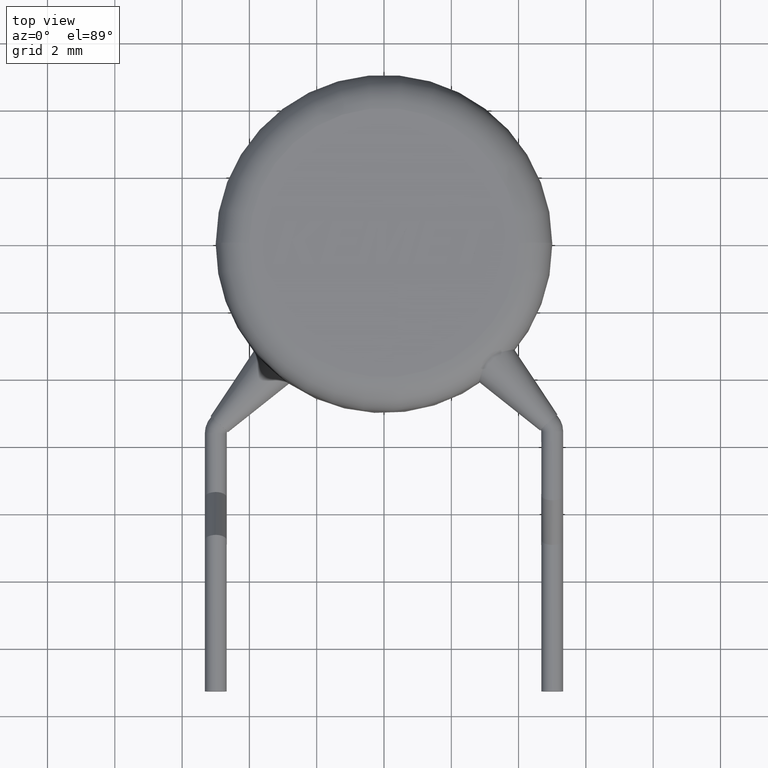
[diagram: clean part render]
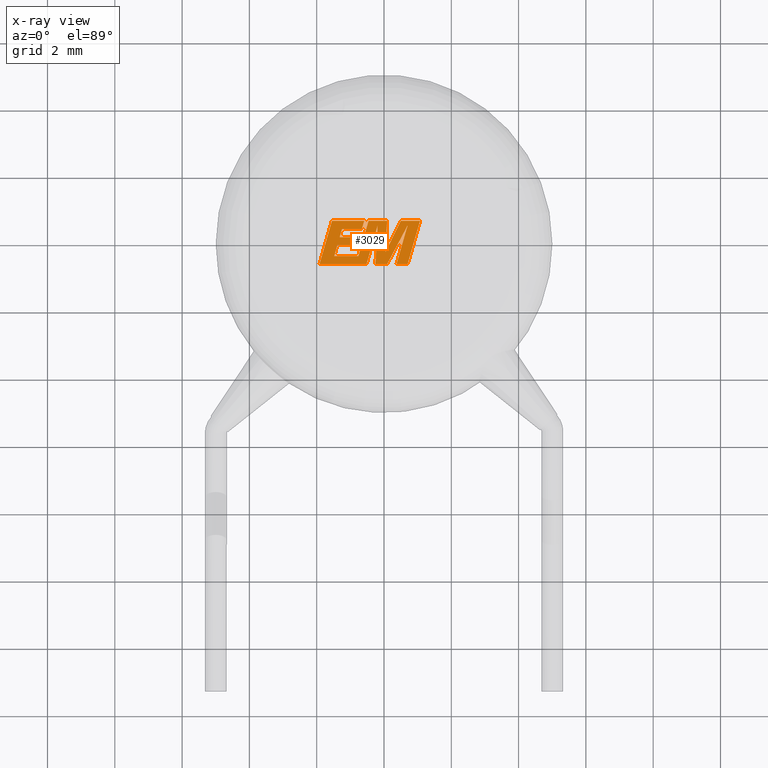
[diagram: x-ray — body ghosted, one internal face saturated and labeled with its STEP entity id]
A machine part, top view, then the same camera in x-ray: the body is ghosted and one INTERNAL B-rep face — a face not visible from any outside direction — is saturated and labeled: STEP entity #3029.
In plain terms, the highlighted planar face has unit normal (0, 0, -1).
Its self-contained STEP definition (entity closure, byte-faithful):
#59 = DIRECTION ( 'NONE',  ( 1.000000000000000000, 3.356850871075833000E-016, 0.0000000000000000000 ) ) ;
#73 = CARTESIAN_POINT ( 'NONE',  ( -1.918301685120686200, -0.6500008832987458400, 4.997772128840647800 ) ) ;
#106 = VERTEX_POINT ( 'NONE', #1135 ) ;
#116 = CARTESIAN_POINT ( 'NONE',  ( -1.545337455831742300, 0.6460950318606386600, 4.997772128840647800 ) ) ;
#141 = EDGE_CURVE ( 'NONE', #1996, #106, #1573, .T. ) ;
#193 = VECTOR ( 'NONE', #2542, 1000.000000000000000 ) ;
#200 = ORIENTED_EDGE ( 'NONE', *, *, #1139, .F. ) ;
#202 = LINE ( 'NONE', #383, #3852 ) ;
#203 = LINE ( 'NONE', #3649, #406 ) ;
#221 = VERTEX_POINT ( 'NONE', #2167 ) ;
#277 = LINE ( 'NONE', #1565, #3358 ) ;
#318 = VECTOR ( 'NONE', #1722, 1000.000000000000100 ) ;
#355 = VERTEX_POINT ( 'NONE', #3950 ) ;
#363 = DIRECTION ( 'NONE',  ( -0.2760118818968558300, -0.9611542233438690200, 0.0000000000000000000 ) ) ;
#383 = CARTESIAN_POINT ( 'NONE',  ( 0.3692732009501374400, -0.6500008832987453900, 4.997772128840647800 ) ) ;
#406 = VECTOR ( 'NONE', #3637, 1000.000000000000000 ) ;
#428 = VERTEX_POINT ( 'NONE', #1945 ) ;
#450 = EDGE_CURVE ( 'NONE', #1593, #784, #976, .T. ) ;
#452 = ORIENTED_EDGE ( 'NONE', *, *, #3002, .F. ) ;
#464 = VECTOR ( 'NONE', #2916, 1000.000000000000100 ) ;
#491 = LINE ( 'NONE', #2409, #2614 ) ;
#502 = VECTOR ( 'NONE', #3738, 1000.000000000000200 ) ;
#503 = CARTESIAN_POINT ( 'NONE',  ( -0.6578946926326947300, 0.3993898294328880300, 4.997772128840647800 ) ) ;
#517 = EDGE_CURVE ( 'NONE', #1735, #2881, #3745, .T. ) ;
#530 = CARTESIAN_POINT ( 'NONE',  ( -1.318557518234737800, 0.1583161941415666700, 4.997772128840647800 ) ) ;
#533 = CARTESIAN_POINT ( 'NONE',  ( -1.386916624980912400, -0.08128747995920908300, 4.997772128840647800 ) ) ;
#535 = ORIENTED_EDGE ( 'NONE', *, *, #2489, .F. ) ;
#655 = LINE ( 'NONE', #1034, #3118 ) ;
#660 = VERTEX_POINT ( 'NONE', #1193 ) ;
#672 = EDGE_CURVE ( 'NONE', #221, #355, #2588, .T. ) ;
#734 = CARTESIAN_POINT ( 'NONE',  ( 0.6986312078143923600, -0.6500008832987453900, 4.997772128840647800 ) ) ;
#742 = DIRECTION ( 'NONE',  ( 1.000000000000000000, 0.0000000000000000000, 0.0000000000000000000 ) ) ;
#784 = VERTEX_POINT ( 'NONE', #4128 ) ;
#814 = CARTESIAN_POINT ( 'NONE',  ( -1.478700528827219700, -0.4034178492251833700, 4.997772128840647800 ) ) ;
#816 = EDGE_CURVE ( 'NONE', #660, #3030, #2740, .T. ) ;
#910 = DIRECTION ( 'NONE',  ( 1.000000000000000000, 0.0000000000000000000, 0.0000000000000000000 ) ) ;
#922 = LINE ( 'NONE', #3548, #1116 ) ;
#955 = DIRECTION ( 'NONE',  ( 0.0000000000000000000, 0.0000000000000000000, -1.000000000000000000 ) ) ;
#976 = LINE ( 'NONE', #1007, #2970 ) ;
#996 = LINE ( 'NONE', #2042, #3212 ) ;
#1007 = CARTESIAN_POINT ( 'NONE',  ( -0.5878252288976687500, 0.6460950318606388800, 4.997772128840647800 ) ) ;
#1034 = CARTESIAN_POINT ( 'NONE',  ( -1.248409236205454000, 0.3993898294328880300, 4.997772128840647800 ) ) ;
#1065 = CARTESIAN_POINT ( 'NONE',  ( -0.2553736050183372200, -0.6500008832987456100, 4.997772128840647800 ) ) ;
#1116 = VECTOR ( 'NONE', #1186, 1000.000000000000000 ) ;
#1135 = CARTESIAN_POINT ( 'NONE',  ( -0.1906953126225210400, 0.5038792423380131800, 4.997772128840647800 ) ) ;
#1139 = EDGE_CURVE ( 'NONE', #3916, #2734, #3683, .T. ) ;
#1186 = DIRECTION ( 'NONE',  ( 0.05375259206908322700, 0.9985542843760947300, 0.0000000000000000000 ) ) ;
#1193 = CARTESIAN_POINT ( 'NONE',  ( -0.7602166024452062800, -0.4034178492251833700, 4.997772128840647800 ) ) ;
#1222 = ORIENTED_EDGE ( 'NONE', *, *, #1696, .F. ) ;
#1301 = EDGE_CURVE ( 'NONE', #1378, #2292, #1479, .T. ) ;
#1352 = EDGE_CURVE ( 'NONE', #2881, #221, #922, .T. ) ;
#1367 = LINE ( 'NONE', #503, #3072 ) ;
#1378 = VERTEX_POINT ( 'NONE', #3051 ) ;
#1400 = EDGE_CURVE ( 'NONE', #784, #4099, #3577, .T. ) ;
#1409 = DIRECTION ( 'NONE',  ( -1.000000000000000000, 0.0000000000000000000, 0.0000000000000000000 ) ) ;
#1429 = DIRECTION ( 'NONE',  ( 0.2732148821745905600, 0.9619530280415591300, 0.0000000000000000000 ) ) ;
#1431 = CARTESIAN_POINT ( 'NONE',  ( -0.5220080131885634900, -0.6500008832987455000, 4.997772128840647800 ) ) ;
#1437 = VECTOR ( 'NONE', #3856, 1000.000000000000000 ) ;
#1445 = CARTESIAN_POINT ( 'NONE',  ( 0.09015397494482271800, -0.6500008832987455000, 4.997772128840647800 ) ) ;
#1464 = DIRECTION ( 'NONE',  ( -1.000000000000000000, 0.0000000000000000000, 0.0000000000000000000 ) ) ;
#1479 = LINE ( 'NONE', #2186, #193 ) ;
#1565 = CARTESIAN_POINT ( 'NONE',  ( 1.071268340140695300, 0.6460950318606393200, 4.997772128840647800 ) ) ;
#1573 = LINE ( 'NONE', #1431, #502 ) ;
#1593 = VERTEX_POINT ( 'NONE', #1784 ) ;
#1630 = VECTOR ( 'NONE', #2305, 1000.000000000000200 ) ;
#1632 = ORIENTED_EDGE ( 'NONE', *, *, #816, .F. ) ;
#1641 = LINE ( 'NONE', #2839, #1437 ) ;
#1672 = EDGE_CURVE ( 'NONE', #4150, #1593, #1367, .T. ) ;
#1696 = EDGE_CURVE ( 'NONE', #4099, #1996, #1721, .T. ) ;
#1721 = LINE ( 'NONE', #2681, #3688 ) ;
#1722 = DIRECTION ( 'NONE',  ( 0.2763139702539121300, 0.9610674221107071700, 0.0000000000000000000 ) ) ;
#1727 = EDGE_CURVE ( 'NONE', #2935, #3916, #203, .T. ) ;
#1735 = VERTEX_POINT ( 'NONE', #2991 ) ;
#1747 = ORIENTED_EDGE ( 'NONE', *, *, #2595, .F. ) ;
#1769 = CARTESIAN_POINT ( 'NONE',  ( -0.05394957496046050300, -0.1657095736357620500, 4.997772128840647800 ) ) ;
#1771 = VECTOR ( 'NONE', #1464, 1000.000000000000000 ) ;
#1784 = CARTESIAN_POINT ( 'NONE',  ( -0.5878252288976687500, 0.6460950318606388800, 4.997772128840647800 ) ) ;
#1786 = ORIENTED_EDGE ( 'NONE', *, *, #3146, .F. ) ;
#1819 = EDGE_CURVE ( 'NONE', #2288, #4150, #655, .T. ) ;
#1838 = ORIENTED_EDGE ( 'NONE', *, *, #1727, .F. ) ;
#1865 = CARTESIAN_POINT ( 'NONE',  ( 0.09341393363798819500, 0.6460950318606388800, 4.997772128840647800 ) ) ;
#1875 = CARTESIAN_POINT ( 'NONE',  ( -0.5220080131885634900, -0.6500008832987455000, 4.997772128840647800 ) ) ;
#1879 = CARTESIAN_POINT ( 'NONE',  ( 0.7022253220395017200, 0.5094359320914363400, 4.997772128840647800 ) ) ;
#1883 = ORIENTED_EDGE ( 'NONE', *, *, #1400, .F. ) ;
#1945 = CARTESIAN_POINT ( 'NONE',  ( 0.6986312078143923600, -0.6500008832987453900, 4.997772128840647800 ) ) ;
#1962 = VECTOR ( 'NONE', #3693, 1000.000000000000000 ) ;
#1985 = LINE ( 'NONE', #1879, #3262 ) ;
#1996 = VERTEX_POINT ( 'NONE', #1875 ) ;
#2042 = CARTESIAN_POINT ( 'NONE',  ( -0.8306959213072585600, -0.08128747995920908300, 4.997772128840647800 ) ) ;
#2094 = VECTOR ( 'NONE', #2834, 1000.000000000000100 ) ;
#2126 = CARTESIAN_POINT ( 'NONE',  ( -1.478700528827219700, -0.4034178492251833700, 4.997772128840647800 ) ) ;
#2139 = ORIENTED_EDGE ( 'NONE', *, *, #1301, .F. ) ;
#2166 = CARTESIAN_POINT ( 'NONE',  ( 1.071268340140695300, 0.6460950318606393200, 4.997772128840647800 ) ) ;
#2167 = CARTESIAN_POINT ( 'NONE',  ( 0.09341393363798819500, 0.6460950318606388800, 4.997772128840647800 ) ) ;
#2186 = CARTESIAN_POINT ( 'NONE',  ( -0.7622579962667237500, 0.1583161941415666700, 4.997772128840647800 ) ) ;
#2226 = ORIENTED_EDGE ( 'NONE', *, *, #2568, .F. ) ;
#2239 = DIRECTION ( 'NONE',  ( -1.000000000000000000, -1.617586338826207700E-016, 0.0000000000000000000 ) ) ;
#2283 = CARTESIAN_POINT ( 'NONE',  ( 0.3692732009501374400, -0.6500008832987453900, 4.997772128840647800 ) ) ;
#2288 = VERTEX_POINT ( 'NONE', #3678 ) ;
#2292 = VERTEX_POINT ( 'NONE', #530 ) ;
#2305 = DIRECTION ( 'NONE',  ( 0.4668459304955211400, 0.8843386665637611400, 0.0000000000000000000 ) ) ;
#2317 = DIRECTION ( 'NONE',  ( 0.2793947940878283600, 0.9601763114327598300, 0.0000000000000000000 ) ) ;
#2335 = VECTOR ( 'NONE', #3808, 1000.000000000000100 ) ;
#2338 = CARTESIAN_POINT ( 'NONE',  ( 0.04356979092839204100, -0.2798525427187182900, 4.997772128840647800 ) ) ;
#2360 = EDGE_CURVE ( 'NONE', #3514, #1378, #996, .T. ) ;
#2409 = CARTESIAN_POINT ( 'NONE',  ( -0.4585474624012029800, 0.6460950318606388800, 4.997772128840647800 ) ) ;
#2416 = DIRECTION ( 'NONE',  ( 0.2746459304916898400, 0.9615454294334480100, 0.0000000000000000000 ) ) ;
#2453 = DIRECTION ( 'NONE',  ( -0.2762517575166156800, -0.9610853065513909100, 0.0000000000000000000 ) ) ;
#2489 = EDGE_CURVE ( 'NONE', #3209, #1735, #277, .T. ) ;
#2542 = DIRECTION ( 'NONE',  ( -1.000000000000000000, 0.0000000000000000000, 0.0000000000000000000 ) ) ;
#2568 = EDGE_CURVE ( 'NONE', #106, #2935, #4167, .T. ) ;
#2588 = LINE ( 'NONE', #1865, #1962 ) ;
#2595 = EDGE_CURVE ( 'NONE', #2734, #2705, #1985, .T. ) ;
#2612 = EDGE_CURVE ( 'NONE', #2292, #2288, #3615, .T. ) ;
#2614 = VECTOR ( 'NONE', #2453, 1000.000000000000100 ) ;
#2641 = ORIENTED_EDGE ( 'NONE', *, *, #141, .F. ) ;
#2681 = CARTESIAN_POINT ( 'NONE',  ( -0.7527091609358903500, -0.6500008832987456100, 4.997772128840647800 ) ) ;
#2697 = ORIENTED_EDGE ( 'NONE', *, *, #450, .F. ) ;
#2705 = VERTEX_POINT ( 'NONE', #2283 ) ;
#2717 = VECTOR ( 'NONE', #2317, 999.9999999999998900 ) ;
#2734 = VERTEX_POINT ( 'NONE', #2983 ) ;
#2740 = LINE ( 'NONE', #3085, #1771 ) ;
#2791 = DIRECTION ( 'NONE',  ( -1.000000000000000000, 0.0000000000000000000, 0.0000000000000000000 ) ) ;
#2825 = ORIENTED_EDGE ( 'NONE', *, *, #3282, .F. ) ;
#2834 = DIRECTION ( 'NONE',  ( -0.05596501978068731100, -0.9984327301130243600, 0.0000000000000000000 ) ) ;
#2839 = CARTESIAN_POINT ( 'NONE',  ( -1.386916624980912400, -0.08128747995920908300, 4.997772128840647800 ) ) ;
#2877 = CARTESIAN_POINT ( 'NONE',  ( -0.1906953126225210400, 0.5038792423380131800, 4.997772128840647800 ) ) ;
#2881 = VERTEX_POINT ( 'NONE', #2338 ) ;
#2916 = DIRECTION ( 'NONE',  ( -0.4443210308329068000, -0.8958676361827026000, 0.0000000000000000000 ) ) ;
#2928 = EDGE_CURVE ( 'NONE', #428, #3209, #3149, .T. ) ;
#2935 = VERTEX_POINT ( 'NONE', #1065 ) ;
#2970 = VECTOR ( 'NONE', #2239, 1000.000000000000000 ) ;
#2983 = CARTESIAN_POINT ( 'NONE',  ( 0.7022253220395017200, 0.5094359320914363400, 4.997772128840647800 ) ) ;
#2991 = CARTESIAN_POINT ( 'NONE',  ( 0.5028094868586791000, 0.6460950318606393200, 4.997772128840647800 ) ) ;
#3002 = EDGE_CURVE ( 'NONE', #3030, #3142, #3034, .T. ) ;
#3029 = ADVANCED_FACE ( 'NONE', ( #3648 ), #3087, .T. ) ;
#3030 = VERTEX_POINT ( 'NONE', #2126 ) ;
#3034 = LINE ( 'NONE', #814, #2335 ) ;
#3043 = ORIENTED_EDGE ( 'NONE', *, *, #1672, .F. ) ;
#3051 = CARTESIAN_POINT ( 'NONE',  ( -0.7622579962667237500, 0.1583161941415666700, 4.997772128840647800 ) ) ;
#3066 = DIRECTION ( 'NONE',  ( -0.2765379750249959400, -0.9610029908221278100, 0.0000000000000000000 ) ) ;
#3069 = CARTESIAN_POINT ( 'NONE',  ( -0.6578946926326947300, 0.3993898294328880300, 4.997772128840647800 ) ) ;
#3072 = VECTOR ( 'NONE', #1429, 1000.000000000000100 ) ;
#3082 = ORIENTED_EDGE ( 'NONE', *, *, #2360, .F. ) ;
#3085 = CARTESIAN_POINT ( 'NONE',  ( -0.7602166024452062800, -0.4034178492251833700, 4.997772128840647800 ) ) ;
#3087 = PLANE ( 'NONE',  #3281 ) ;
#3095 = EDGE_LOOP ( 'NONE', ( #535, #3103, #2825, #1747, #200, #1838, #2226, #2641, #1222, #1883, #2697, #3043, #3909, #3591, #2139, #3082, #1786, #452, #1632, #3699, #3992, #4001, #3604 ) ) ;
#3103 = ORIENTED_EDGE ( 'NONE', *, *, #2928, .F. ) ;
#3118 = VECTOR ( 'NONE', #910, 1000.000000000000000 ) ;
#3142 = VERTEX_POINT ( 'NONE', #533 ) ;
#3146 = EDGE_CURVE ( 'NONE', #3142, #3514, #1641, .T. ) ;
#3149 = LINE ( 'NONE', #734, #318 ) ;
#3157 = CARTESIAN_POINT ( 'NONE',  ( 0.09015397494482271800, -0.6500008832987455000, 4.997772128840647800 ) ) ;
#3209 = VERTEX_POINT ( 'NONE', #2166 ) ;
#3212 = VECTOR ( 'NONE', #2416, 1000.000000000000100 ) ;
#3262 = VECTOR ( 'NONE', #363, 1000.000000000000200 ) ;
#3281 = AXIS2_PLACEMENT_3D ( 'NONE', #1769, #955, #1409 ) ;
#3282 = EDGE_CURVE ( 'NONE', #2705, #428, #202, .T. ) ;
#3289 = CARTESIAN_POINT ( 'NONE',  ( 0.5028094868586791000, 0.6460950318606393200, 4.997772128840647800 ) ) ;
#3311 = VECTOR ( 'NONE', #3066, 1000.000000000000000 ) ;
#3358 = VECTOR ( 'NONE', #2791, 1000.000000000000000 ) ;
#3378 = EDGE_CURVE ( 'NONE', #355, #660, #491, .T. ) ;
#3514 = VERTEX_POINT ( 'NONE', #3744 ) ;
#3548 = CARTESIAN_POINT ( 'NONE',  ( 0.04356979092839204100, -0.2798525427187182900, 4.997772128840647800 ) ) ;
#3577 = LINE ( 'NONE', #116, #3311 ) ;
#3591 = ORIENTED_EDGE ( 'NONE', *, *, #2612, .F. ) ;
#3604 = ORIENTED_EDGE ( 'NONE', *, *, #517, .F. ) ;
#3615 = LINE ( 'NONE', #4048, #2717 ) ;
#3637 = DIRECTION ( 'NONE',  ( 1.000000000000000000, 4.482590645044186300E-016, 0.0000000000000000000 ) ) ;
#3648 = FACE_OUTER_BOUND ( 'NONE', #3095, .T. ) ;
#3649 = CARTESIAN_POINT ( 'NONE',  ( -0.2553736050183372200, -0.6500008832987456100, 4.997772128840647800 ) ) ;
#3678 = CARTESIAN_POINT ( 'NONE',  ( -1.248409236205454000, 0.3993898294328880300, 4.997772128840647800 ) ) ;
#3683 = LINE ( 'NONE', #3157, #1630 ) ;
#3688 = VECTOR ( 'NONE', #59, 1000.000000000000000 ) ;
#3693 = DIRECTION ( 'NONE',  ( -1.000000000000000000, 0.0000000000000000000, 0.0000000000000000000 ) ) ;
#3699 = ORIENTED_EDGE ( 'NONE', *, *, #3378, .F. ) ;
#3738 = DIRECTION ( 'NONE',  ( 0.2759782365590712200, 0.9611638845408961900, 0.0000000000000000000 ) ) ;
#3744 = CARTESIAN_POINT ( 'NONE',  ( -0.8306959213072585600, -0.08128747995920908300, 4.997772128840647800 ) ) ;
#3745 = LINE ( 'NONE', #3289, #464 ) ;
#3808 = DIRECTION ( 'NONE',  ( 0.2740217765954062700, 0.9617234872620597000, 0.0000000000000000000 ) ) ;
#3852 = VECTOR ( 'NONE', #742, 1000.000000000000000 ) ;
#3856 = DIRECTION ( 'NONE',  ( 1.000000000000000000, 0.0000000000000000000, 0.0000000000000000000 ) ) ;
#3909 = ORIENTED_EDGE ( 'NONE', *, *, #1819, .F. ) ;
#3916 = VERTEX_POINT ( 'NONE', #1445 ) ;
#3950 = CARTESIAN_POINT ( 'NONE',  ( -0.4585474624012029800, 0.6460950318606388800, 4.997772128840647800 ) ) ;
#3992 = ORIENTED_EDGE ( 'NONE', *, *, #672, .F. ) ;
#4001 = ORIENTED_EDGE ( 'NONE', *, *, #1352, .F. ) ;
#4048 = CARTESIAN_POINT ( 'NONE',  ( -1.318557518234737800, 0.1583161941415666700, 4.997772128840647800 ) ) ;
#4099 = VERTEX_POINT ( 'NONE', #73 ) ;
#4128 = CARTESIAN_POINT ( 'NONE',  ( -1.545337455831742300, 0.6460950318606386600, 4.997772128840647800 ) ) ;
#4150 = VERTEX_POINT ( 'NONE', #3069 ) ;
#4167 = LINE ( 'NONE', #2877, #2094 ) ;